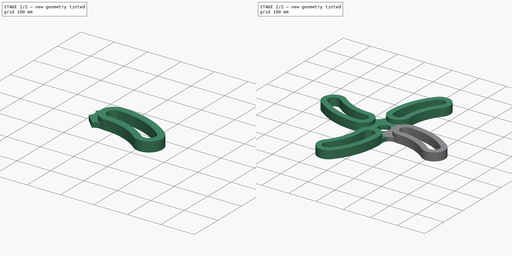
[diagram: build sequence overview — one tinted view per stage of 2, left to right]
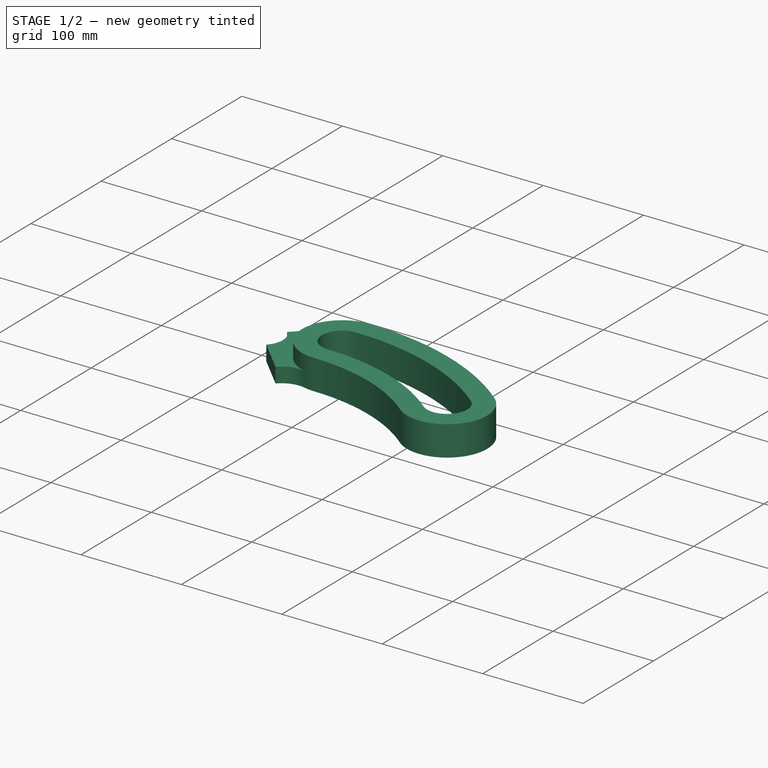
[diagram: stage 1 of 2 — iso view after this stage's code; geometry added in this stage tinted green]
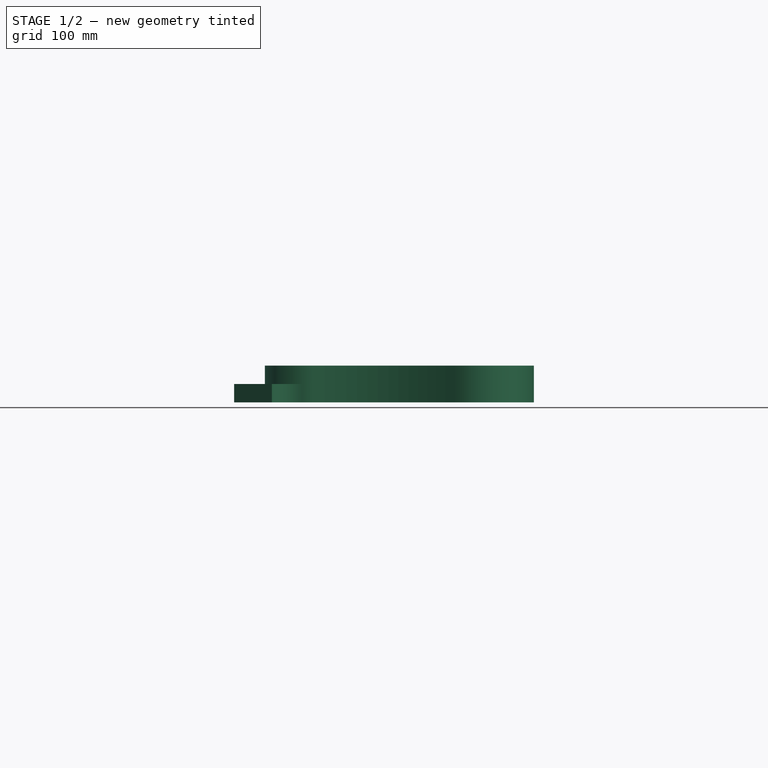
[diagram: stage 1 of 2 — front view after this stage's code; geometry added in this stage tinted green]
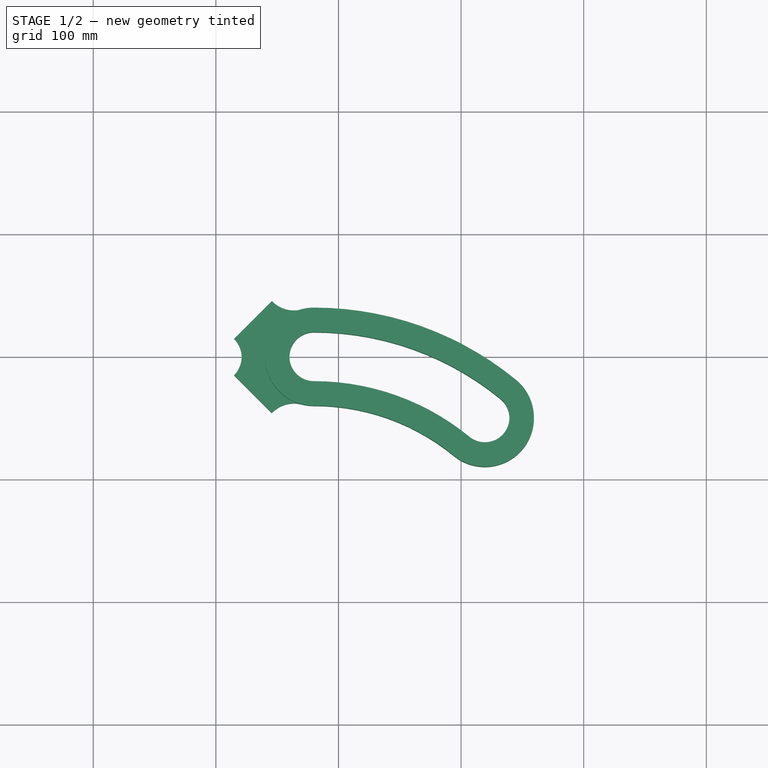
[diagram: stage 1 of 2 — top view after this stage's code; geometry added in this stage tinted green]
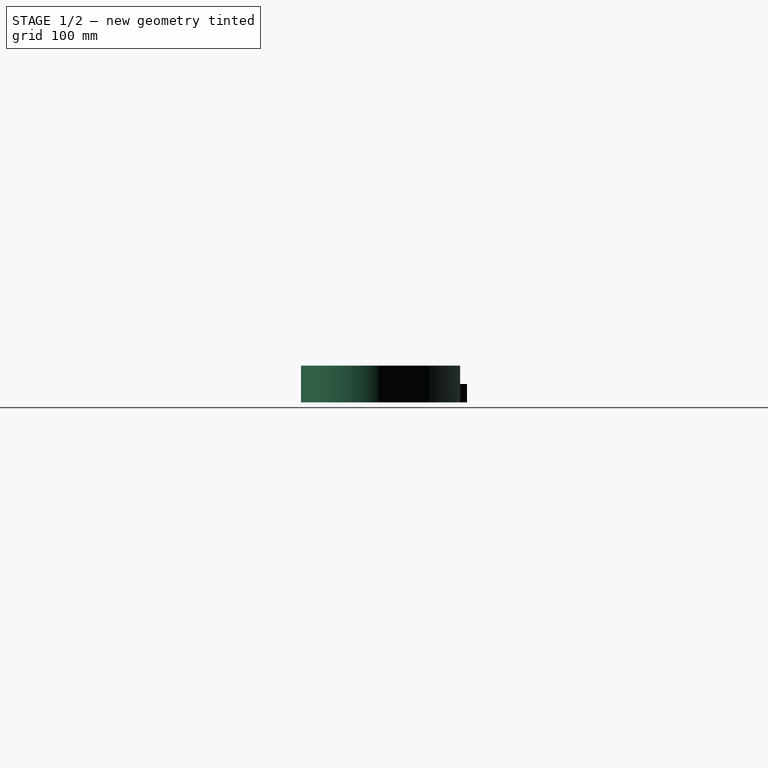
[diagram: stage 1 of 2 — right view after this stage's code; geometry added in this stage tinted green]
FCSTD DOCUMENT  (FreeCAD 1.1R42461 (Git))
Label: 25-SPO-04-IRIS_FLOWER_HUB
License: Creative Commons Attribution-NonCommercial-ShareAlike 4.0
LicenseURL: https://creativecommons.org/licenses/by-nc-sa/4.0/
objects: Sketcher::SketchObject×2, PartDesign::Pad×2, App::Point×1, PartDesign::PolarPattern×1, PartDesign::Body×1, App::TextDocument×1
note: 13 computed .brp shape members not serialized (recipe doc carries the construction recipe); baked Part::Feature solids carry a one-line shape summary decoded from their .brp

FEATURE [App::Point] Origin001  label="Origine"
  Role = Origin
FEATURE [Sketcher::SketchObject] Sketch
  ArcFitTolerance = 1e-06
  AttachmentSupport = -> [Origin]
  ExternalTypes = [0]
  FullyConstrained = true
  MakeInternals = false
  MapMode = 5
  expr: Constraints[11] = 160 / 2
  sketch-geometry (9):
    g0: ArcOfCircle CenterX=80 CenterY=-220 CenterZ=0 NormalX=0 NormalY=0 NormalZ=1 AngleXU=0 Radius=260 StartAngle=0.884456 EndAngle=1.5708
    g1: ArcOfCircle CenterX=80 CenterY=0 CenterZ=0 NormalX=0 NormalY=0 NormalZ=1 AngleXU=0 Radius=40 StartAngle=1.5708 EndAngle=4.71239
    g2: ArcOfCircle CenterX=219.416 CenterY=-49.8145 CenterZ=0 NormalX=0 NormalY=0 NormalZ=1 AngleXU=0 Radius=40 StartAngle=4.02605 EndAngle=7.16764
    g3: ArcOfCircle CenterX=80 CenterY=-220 CenterZ=0 NormalX=0 NormalY=0 NormalZ=1 AngleXU=0 Radius=180 StartAngle=0.884456 EndAngle=1.5708
    g4: Circle [constr] CenterX=0 CenterY=0 CenterZ=0 NormalX=0 NormalY=0 NormalZ=1 AngleXU=0 Radius=225
    g5: ArcOfCircle CenterX=80 CenterY=-220 CenterZ=0 NormalX=0 NormalY=0 NormalZ=1 AngleXU=0 Radius=200 StartAngle=0.884456 EndAngle=1.5708
    g6: ArcOfCircle CenterX=80 CenterY=0 CenterZ=0 NormalX=0 NormalY=0 NormalZ=1 AngleXU=0 Radius=20 StartAngle=1.5708 EndAngle=4.71239
    g7: ArcOfCircle CenterX=80 CenterY=-220 CenterZ=0 NormalX=0 NormalY=0 NormalZ=1 AngleXU=0 Radius=240 StartAngle=0.884456 EndAngle=1.5708
    g8: ArcOfCircle CenterX=219.416 CenterY=-49.8145 CenterZ=0 NormalX=0 NormalY=0 NormalZ=1 AngleXU=0 Radius=20 StartAngle=4.02605 EndAngle=7.16764
  constraints (22):
    c: Coincident(g0,g3)
    c: Tangent(g3,g2) = 1.5708
    c: Tangent(g3,g1) = 1.5708
    c: Tangent(g0,g2) = -1.5708
    c: Tangent(g0,g1) = -1.5708
    c: Distance(g0,g2) = 220
    c: PointOnObject(g1,g-1)
    c: Radius(g2) = 40
    c: Coincident(g4,g-1)
    c: PointOnObject(g2,g4)
    c: Diameter(g4) = 450
    c: DistanceX(g4,g1) = 80
    c: Tangent(g5,g6) = 1.5708
    c: Tangent(g5,g8) = 1.5708
    c: Tangent(g6,g7) = -1.5708
    c: Tangent(g7,g8) = -1.5708
    c: Coincident(g8,g2)
    c: Coincident(g5,g0)
    c: Coincident(g6,g1)
    c: Distance(g7,g0) = 20
    c: Vertical(g7,g1)
    c: Horizontal(g7,g0)
FEATURE [PartDesign::Pad] Pad
  Direction = (0,0,1)
  Length = 30
  Length2 = 10
  Profile = -> Sketch
  ReferenceAxis = -> Sketch [N_Axis]
  Refine = true
  Suppressed = false
  Type = 0
FEATURE [Sketcher::SketchObject] Sketch001
  ArcFitTolerance = 1e-06
  AttachmentSupport = -> [Origin]
  ExternalTypes = [0]
  FullyConstrained = true
  MakeInternals = false
  MapMode = 5
  sketch-geometry (7):
    g0: ArcOfCircle CenterX=0 CenterY=0 CenterZ=0 NormalX=0 NormalY=0 NormalZ=1 AngleXU=0 Radius=21 StartAngle=5.49779 EndAngle=7.06858
    g1: Circle [constr] CenterX=0 CenterY=0 CenterZ=0 NormalX=0 NormalY=0 NormalZ=1 AngleXU=0 Radius=80
    g2: ArcOfCircle CenterX=80 CenterY=0 CenterZ=0 NormalX=0 NormalY=0 NormalZ=1 AngleXU=0 Radius=40 StartAngle=1.82348 EndAngle=4.45971
    g3: LineSegment StartX=14.8492 StartY=14.8492 StartZ=0 EndX=45.67 EndY=45.67 EndZ=0
    g4: ArcOfCircle CenterX=63.75 CenterY=62.936 CenterZ=0 NormalX=0 NormalY=0 NormalZ=1 AngleXU=0 Radius=25 StartAngle=3.90396 EndAngle=4.96507
    g5: ArcOfCircle CenterX=63.75 CenterY=-62.936 CenterZ=0 NormalX=0 NormalY=0 NormalZ=1 AngleXU=0 Radius=25 StartAngle=1.31812 EndAngle=2.37922
    g6: LineSegment StartX=45.67 StartY=-45.67 StartZ=0 EndX=14.8492 EndY=-14.8492 EndZ=0
  constraints (20):
    c: Coincident(g0,g-1)
    c: Diameter(g1) = 160
    c: Coincident(g1,g0)
    c: Coincident(g2,g-3)
    c: PointOnObject(g2,g-3)
    c: PointOnObject(g2,g1)
    c: PointOnObject(g2,g1)
    c: PointOnObject(g0,g3)
    c: Coincident(g4,g3)
    c: Tangent(g4,g2) = 1.5708
    c: Radius(g4) = 25
    c: Angle(g-1,g3) = 0.785398
    c: Tangent(g5,g2) = 1.5708
    c: Coincident(g6,g5)
    c: PointOnObject(g0,g6)
    c: Equal(g5,g4)
    c: Angle(g6,g-1) = 0.785398
    c: Diameter(g0) = 42
    c: Coincident(g3,g0)
    c: Coincident(g6,g0)
FEATURE [PartDesign::Pad] Pad001
  BaseFeature = -> Pad
  Direction = (0,0,1)
  Length = 15
  Length2 = 10
  Profile = -> Sketch001
  ReferenceAxis = -> Sketch001 [N_Axis]
  Refine = true
  Suppressed = false
  Type = 0
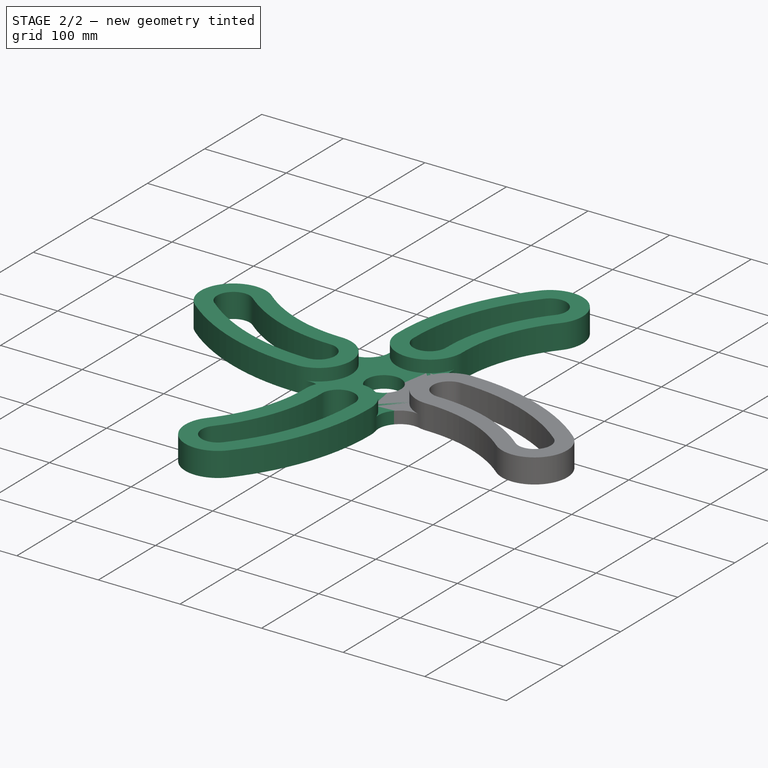
[diagram: stage 2 of 2 — iso view after this stage's code; geometry added in this stage tinted green]
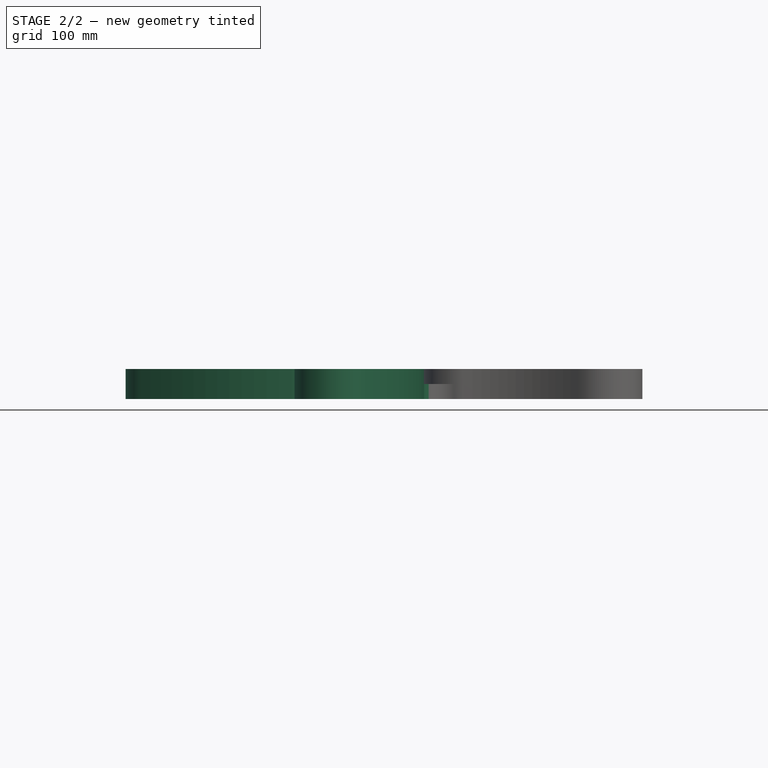
[diagram: stage 2 of 2 — front view after this stage's code; geometry added in this stage tinted green]
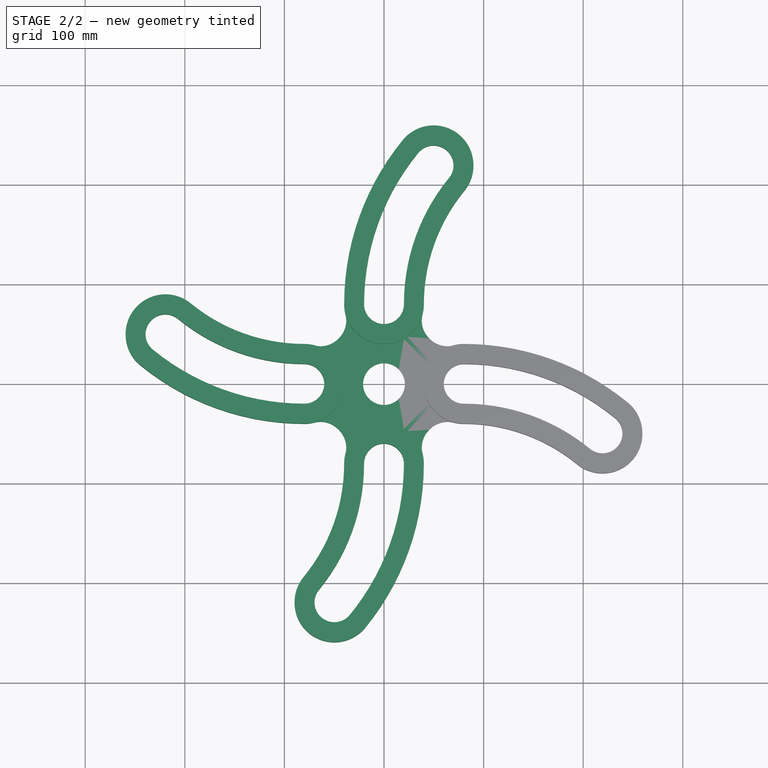
[diagram: stage 2 of 2 — top view after this stage's code; geometry added in this stage tinted green]
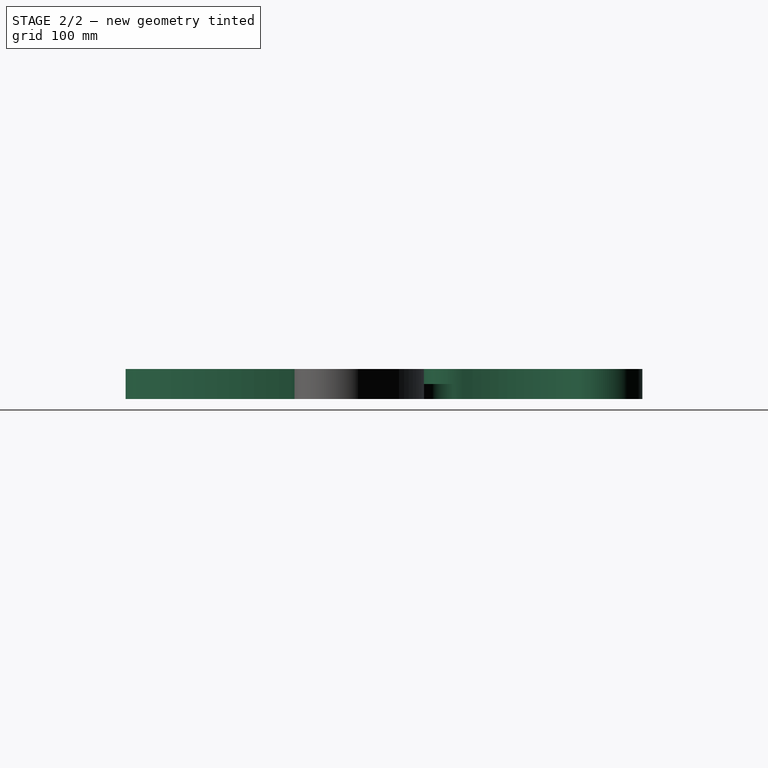
[diagram: stage 2 of 2 — right view after this stage's code; geometry added in this stage tinted green]
FEATURE [PartDesign::PolarPattern] PolarPattern
  Angle = 360
  Axis = -> Z_Axis
  BaseFeature = -> Pad001
  Mode = 0
  Occurrences = 4
  Offset = 120
  Refine = true
  Suppressed = false
  TransformMode = 1
FEATURE [PartDesign::Body] Body  label="Corps"
  AllowCompound = false
  Group = -> [Sketch,Pad,Sketch001,Pad001,PolarPattern]
  Origin = -> Origin
  Tip = -> PolarPattern
FEATURE [App::TextDocument] Text_document  label="Wheight"
  Text = 1060 Alum Alloy\n2700 kg/m3\n\n3490g
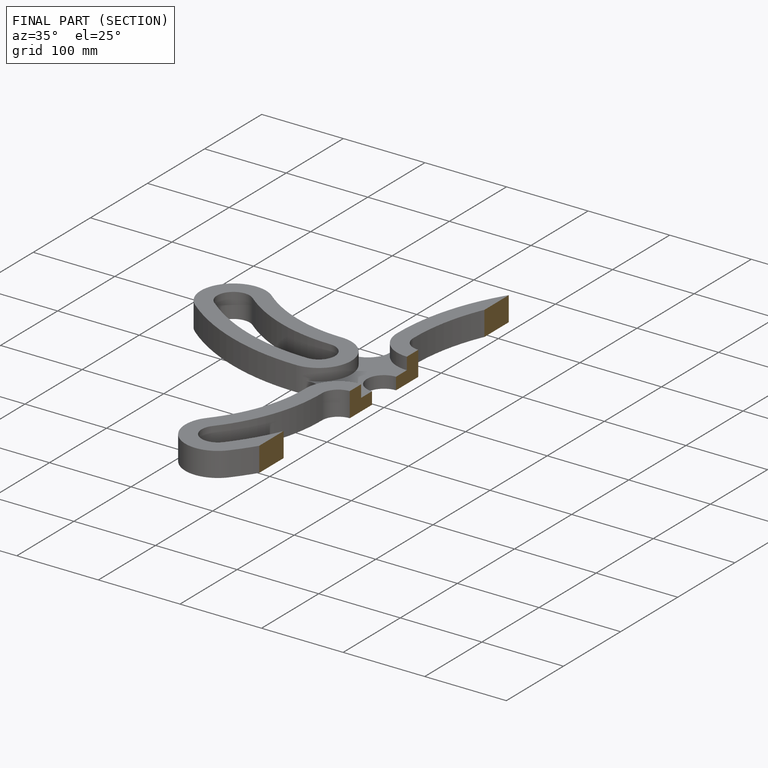
[diagram: finished part — half-section view (interior)]
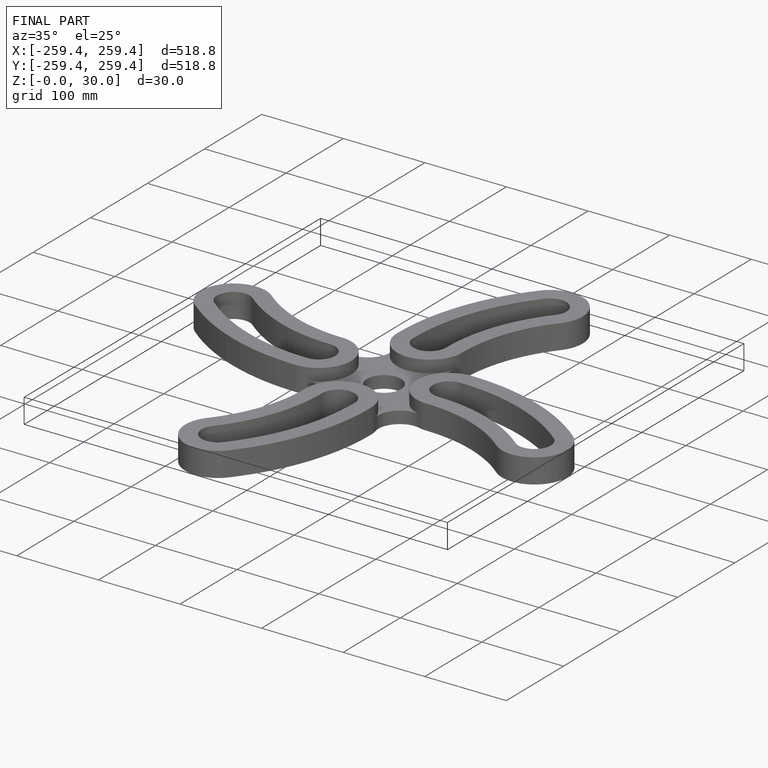
[diagram: finished part — iso view with bounding-box wireframe]
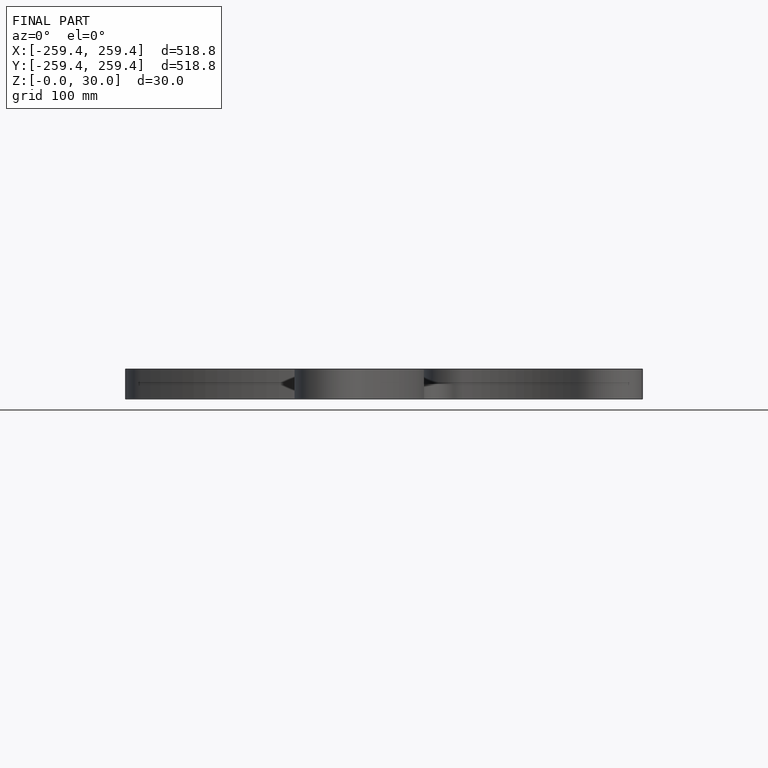
[diagram: finished part — front view with bounding-box wireframe]
